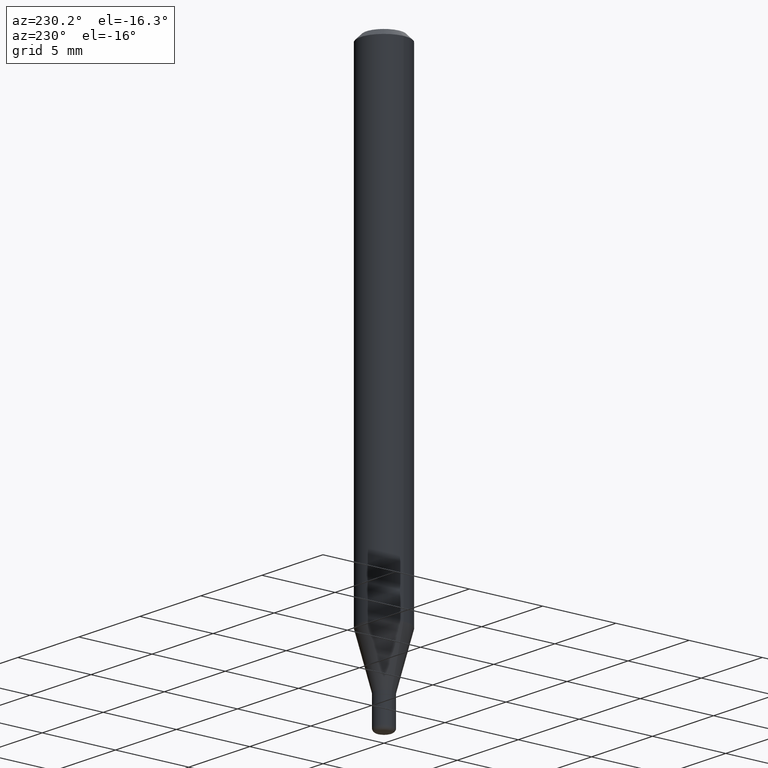
[diagram: clean part render]
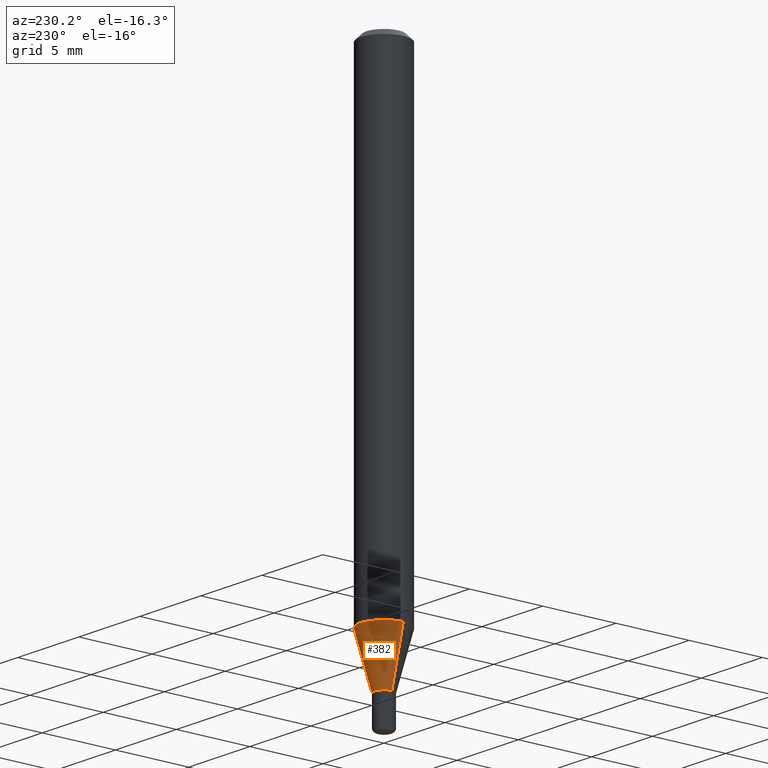
[diagram: same view with one face highlighted and labeled with its STEP entity id]
A machine part, auxiliary view. The second image highlights one B-rep face of the part: STEP entity #382.
In plain terms, the highlighted conical surface has half-angle 15 deg.
Its self-contained STEP definition (entity closure, byte-faithful):
#4 = DIRECTION ( 'NONE',  ( -2.445468806185136597E-29, 3.491481338843145583E-15, 1.000000000000000000 ) ) ;
#8 = VERTEX_POINT ( 'NONE', #225 ) ;
#15 = CIRCLE ( 'NONE', #40, 0.02499999999999998057 ) ;
#18 = ORIENTED_EDGE ( 'NONE', *, *, #103, .T. ) ;
#38 = CARTESIAN_POINT ( 'NONE',  ( 0.06250000000000000000, -4.888241796184395369E-15, -1.275048094716166869 ) ) ;
#40 = AXIS2_PLACEMENT_3D ( 'NONE', #461, #4, #77 ) ;
#62 = DIRECTION ( 'NONE',  ( 1.000000000000000000, -6.982962677686262766E-15, 0.000000000000000000 ) ) ;
#65 = ORIENTED_EDGE ( 'NONE', *, *, #343, .F. ) ;
#72 = EDGE_CURVE ( 'NONE', #175, #8, #300, .T. ) ;
#77 = DIRECTION ( 'NONE',  ( 1.000000000000000000, -6.982962677686260400E-15, 0.000000000000000000 ) ) ;
#83 = EDGE_LOOP ( 'NONE', ( #18, #212, #247, #65 ) ) ;
#103 = EDGE_CURVE ( 'NONE', #209, #175, #15, .T. ) ;
#113 = VERTEX_POINT ( 'NONE', #38 ) ;
#128 = FACE_OUTER_BOUND ( 'NONE', #83, .T. ) ;
#130 = CONICAL_SURFACE ( 'NONE', #185, 0.02499999999999998057, 0.2617993877991491858 ) ;
#171 = CARTESIAN_POINT ( 'NONE',  ( 0.02499999999999998057, -5.115020161405207405E-15, -1.415000000000000036 ) ) ;
#175 = VERTEX_POINT ( 'NONE', #430 ) ;
#185 = AXIS2_PLACEMENT_3D ( 'NONE', #325, #251, #315 ) ;
#192 = CIRCLE ( 'NONE', #501, 0.06250000000000000000 ) ;
#209 = VERTEX_POINT ( 'NONE', #355 ) ;
#212 = ORIENTED_EDGE ( 'NONE', *, *, #72, .T. ) ;
#218 = VECTOR ( 'NONE', #286, 39.37007874015748143 ) ;
#219 = DIRECTION ( 'NONE',  ( -2.445468806185136597E-29, 3.491481338843145583E-15, 1.000000000000000000 ) ) ;
#221 = CARTESIAN_POINT ( 'NONE',  ( -0.02499999999999998057, -4.762810410523025533E-15, -1.415000000000000036 ) ) ;
#224 = CARTESIAN_POINT ( 'NONE',  ( 3.118090342014177952E-29, -4.451806628829005278E-15, -1.275048094716166869 ) ) ;
#225 = CARTESIAN_POINT ( 'NONE',  ( -0.06250000000000000000, -4.007717418978941084E-15, -1.275048094716166869 ) ) ;
#247 = ORIENTED_EDGE ( 'NONE', *, *, #498, .F. ) ;
#251 = DIRECTION ( 'NONE',  ( -2.445468806185136597E-29, 3.491481338843145583E-15, 1.000000000000000000 ) ) ;
#286 = DIRECTION ( 'NONE',  ( 0.2588190451025205174, 1.565188264969628476E-15, 0.9659258262890684232 ) ) ;
#300 = LINE ( 'NONE', #221, #348 ) ;
#315 = DIRECTION ( 'NONE',  ( 1.000000000000000000, -6.982962677686260400E-15, 0.000000000000000000 ) ) ;
#325 = CARTESIAN_POINT ( 'NONE',  ( 3.460338360751968441E-29, -4.940446094463050737E-15, -1.415000000000000036 ) ) ;
#343 = EDGE_CURVE ( 'NONE', #209, #113, #449, .T. ) ;
#348 = VECTOR ( 'NONE', #381, 39.37007874015748143 ) ;
#355 = CARTESIAN_POINT ( 'NONE',  ( 0.02499999999999998057, -5.115020161405207405E-15, -1.415000000000000036 ) ) ;
#381 = DIRECTION ( 'NONE',  ( -0.2588190451025205174, 5.211531920934544731E-15, 0.9659258262890684232 ) ) ;
#382 = ADVANCED_FACE ( 'NONE', ( #128 ), #130, .T. ) ;
#430 = CARTESIAN_POINT ( 'NONE',  ( -0.02499999999999998057, -4.385263914750983308E-15, -1.415000000000000036 ) ) ;
#449 = LINE ( 'NONE', #171, #218 ) ;
#461 = CARTESIAN_POINT ( 'NONE',  ( 3.460338360751968441E-29, -4.940446094463050737E-15, -1.415000000000000036 ) ) ;
#498 = EDGE_CURVE ( 'NONE', #113, #8, #192, .T. ) ;
#501 = AXIS2_PLACEMENT_3D ( 'NONE', #224, #219, #62 ) ;